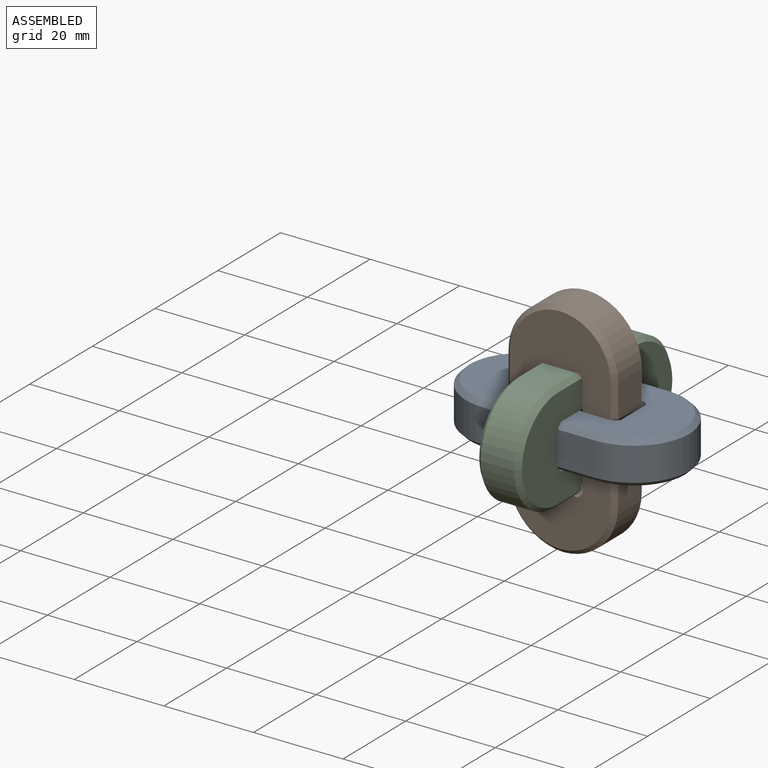
[diagram: assembled view]
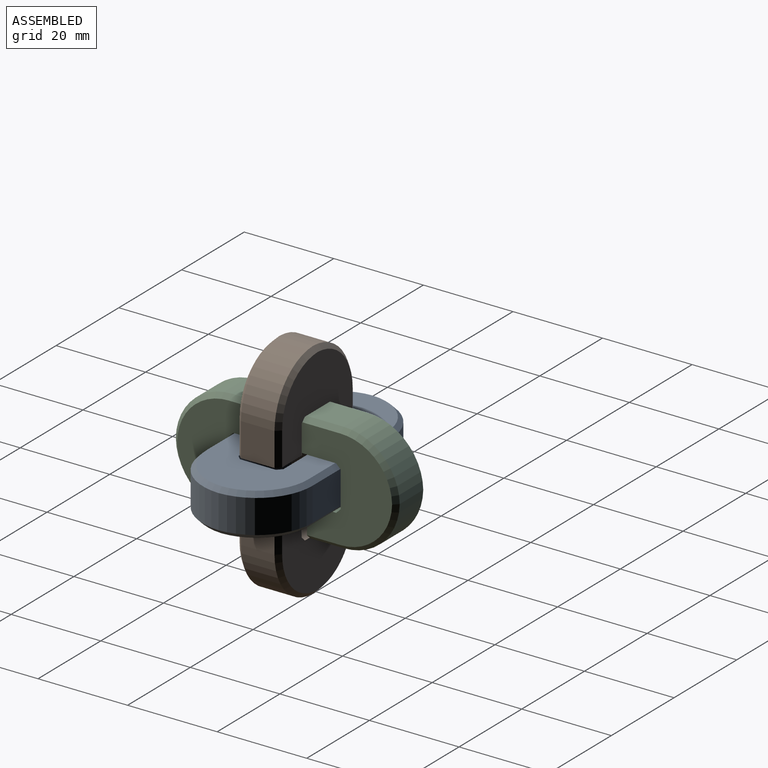
[diagram: assembled view, second angle]
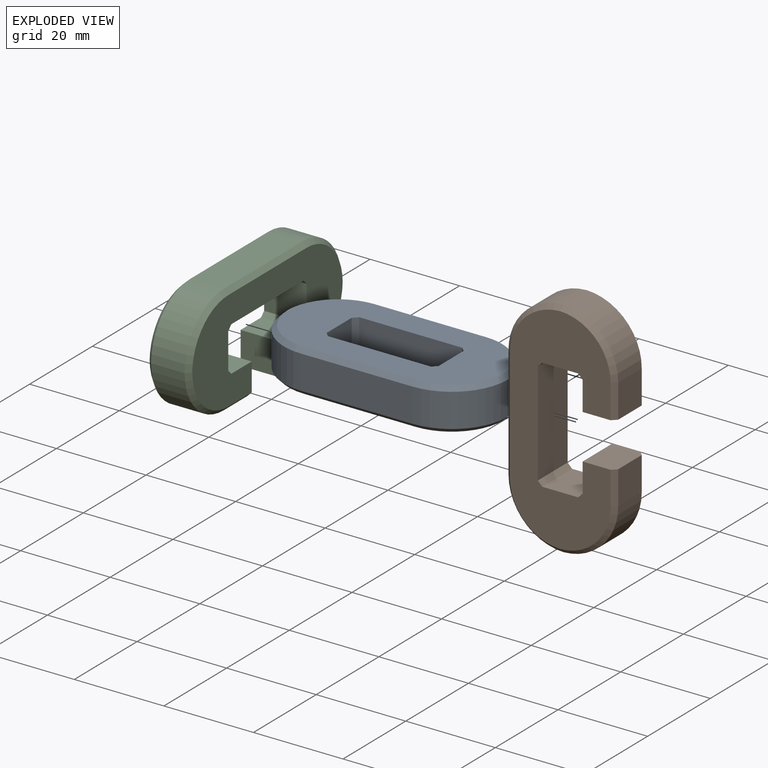
[diagram: exploded view]
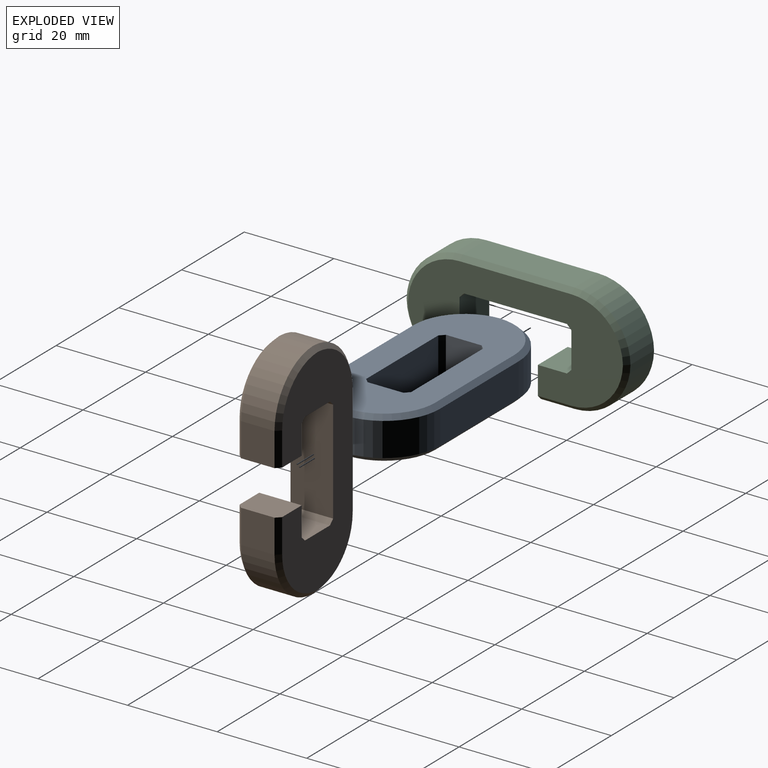
[diagram: exploded view, second angle]
ASSEMBLY  parts=3 mates=3
PART A: 28 faces, bbox 50x24.5x9.5 mm
  f0: plane 23x9.5mm, normal (0,-1,0), area 218.5mm2, adj f6,f7,f24,f25
  f1: plane 9.5x8mm, normal (-1,0,0), area 76mm2, adj f6,f7,f25,f26
  f2: plane 23x9.5mm, normal (0,1,0), area 218.5mm2, adj f6,f7,f26,f27
  f3: plane 25x7.5mm, normal (0,1,0), area 187.5mm2, adj f9,f11,f13,f20
  f4: plane 25x7.5mm, normal (0,-1,0), area 187.5mm2, adj f8,f10,f16,f21
  f5: plane 9.5x8mm, normal (1,0,0), area 76mm2, adj f6,f7,f24,f27
  f6: plane 47.99x22.5mm, normal (0,0,1), area 718.5mm2, adj f0,f1,f2,f5,f18,f19,f20,f21
  f7: plane 47.99x22.5mm, normal (0,0,-1), area 718.5mm2, adj f0,f1,f2,f5,f12,f13,f14,f15
  f8: cylinder r=12.5mm len=12.5mm, axis (0,0,-1), area 145.4mm2, adj f4,f9,f17,f23
  f9: cylinder r=12.5mm len=12.5mm, axis (0,0,1), area 145.4mm2, adj f3,f8,f15,f22
  f10: cylinder r=12.5mm len=12.5mm, axis (0,0,1), area 145.4mm2, adj f4,f11,f14,f19
  f11: cylinder r=12.5mm len=12.5mm, axis (0,0,-1), area 145.4mm2, adj f3,f10,f12,f18
  f12: cone r=11.5mm half-angle=45deg, axis (0,0,1), area 26.3mm2, adj f7,f11,f13,f14
  f13: plane 25x1mm, normal (0,0.71,-0.71), area 35.4mm2, adj f3,f7,f12,f15
  f14: cone r=11.5mm half-angle=45deg, axis (0,0,1), area 26.3mm2, adj f7,f10,f12,f16
  f15: cone r=11.5mm half-angle=45deg, axis (0,0,1), area 26.3mm2, adj f7,f9,f13,f17
  f16: plane 25x1mm, normal (0,-0.71,-0.71), area 35.4mm2, adj f4,f7,f14,f17
  f17: cone r=11.5mm half-angle=45deg, axis (0,0,1), area 26.3mm2, adj f7,f8,f15,f16
  f18: cone r=11.5mm half-angle=45deg, axis (0,0,-1), area 26.3mm2, adj f6,f11,f19,f20
  f19: cone r=11.5mm half-angle=45deg, axis (0,0,-1), area 26.3mm2, adj f6,f10,f18,f21
  f20: plane 25x1mm, normal (0,0.71,0.71), area 35.4mm2, adj f3,f6,f18,f22
  f21: plane 25x1mm, normal (0,-0.71,0.71), area 35.4mm2, adj f4,f6,f19,f23
  f22: cone r=11.5mm half-angle=45deg, axis (0,0,-1), area 26.3mm2, adj f6,f9,f20,f23
  f23: cone r=11.5mm half-angle=45deg, axis (0,0,-1), area 26.3mm2, adj f6,f8,f21,f22
  f24: plane 9.5x1mm, normal (0.71,-0.71,0), area 13.4mm2, adj f0,f5,f6,f7
  f25: plane 9.5x1mm, normal (-0.71,-0.71,0), area 13.4mm2, adj f0,f1,f6,f7
  f26: plane 9.5x1mm, normal (-0.71,0.71,0), area 13.4mm2, adj f1,f2,f6,f7
  f27: plane 9.5x1mm, normal (0.71,0.71,0), area 13.4mm2, adj f2,f5,f6,f7
PART B: 34 faces, bbox 50x24.5x9.5 mm
  f0: plane 9.5x8mm, normal (-1,0,0), area 76mm2, adj f10,f11,f31,f32
  f1: plane 9.5x6.5mm, normal (0,1,0), area 61.8mm2, adj f2,f10,f11,f31
  f2: plane 9.5x7.25mm, normal (-1,0,0), area 67.9mm2, adj f1,f3,f10,f11,f18,f28
  f3: plane 7.5x7.5mm, normal (0,-1,0), area 56.2mm2, adj f2,f13,f18,f28
  f4: plane 25x7.5mm, normal (0,1,0), area 187.5mm2, adj f12,f15,f21,f26
  f5: plane 7.5x7.5mm, normal (0,-1,0), area 56.2mm2, adj f6,f14,f16,f23
  f6: plane 9.5x7.25mm, normal (1,0,0), area 67.9mm2, adj f5,f7,f10,f11,f16,f23
  f7: plane 9.5x6.5mm, normal (0,1,0), area 61.8mm2, adj f6,f10,f11,f30
  f8: plane 9.5x8mm, normal (1,0,0), area 76mm2, adj f10,f11,f30,f33
  f9: plane 23x9.5mm, normal (0,-1,0), area 218.5mm2, adj f10,f11,f32,f33
  f10: plane 47.99x22.5mm, normal (0,0,1), area 656mm2, adj f0,f1,f2,f6,f7,f8,f9,f16
  f11: plane 47.99x22.5mm, normal (0,0,-1), area 656mm2, adj f0,f1,f2,f6,f7,f8,f9,f23
  f12: cylinder r=12.5mm len=12.5mm, axis (0,0,1), area 145.4mm2, adj f4,f13,f22,f27
  f13: cylinder r=12.5mm len=12.5mm, axis (0,0,-1), area 145.4mm2, adj f3,f12,f20,f29
  f14: cylinder r=12.5mm len=12.5mm, axis (0,0,1), area 145.4mm2, adj f5,f15,f17,f24
  f15: cylinder r=12.5mm len=12.5mm, axis (0,0,-1), area 145.4mm2, adj f4,f14,f19,f25
  f16: plane 7.5x1mm, normal (0,-0.71,0.71), area 10.6mm2, adj f5,f6,f10,f17
  f17: cone r=11.5mm half-angle=45deg, axis (0,0,-1), area 26.3mm2, adj f10,f14,f16,f19
  f18: plane 7.5x1mm, normal (0,-0.71,0.71), area 10.6mm2, adj f2,f3,f10,f20
  f19: cone r=11.5mm half-angle=45deg, axis (0,0,-1), area 26.3mm2, adj f10,f15,f17,f21
  f20: cone r=11.5mm half-angle=45deg, axis (0,0,-1), area 26.3mm2, adj f10,f13,f18,f22
  f21: plane 25x1mm, normal (0,0.71,0.71), area 35.4mm2, adj f4,f10,f19,f22
  f22: cone r=11.5mm half-angle=45deg, axis (0,0,-1), area 26.3mm2, adj f10,f12,f20,f21
  f23: plane 7.5x1mm, normal (0,-0.71,-0.71), area 10.6mm2, adj f5,f6,f11,f24
  f24: cone r=11.5mm half-angle=45deg, axis (0,0,1), area 26.3mm2, adj f11,f14,f23,f25
  f25: cone r=11.5mm half-angle=45deg, axis (0,0,1), area 26.3mm2, adj f11,f15,f24,f26
  f26: plane 25x1mm, normal (0,0.71,-0.71), area 35.4mm2, adj f4,f11,f25,f27
  f27: cone r=11.5mm half-angle=45deg, axis (0,0,1), area 26.3mm2, adj f11,f12,f26,f29
  f28: plane 7.5x1mm, normal (0,-0.71,-0.71), area 10.6mm2, adj f2,f3,f11,f29
  f29: cone r=11.5mm half-angle=45deg, axis (0,0,1), area 26.3mm2, adj f11,f13,f27,f28
  f30: plane 9.5x1mm, normal (0.71,0.71,0), area 13.4mm2, adj f7,f8,f10,f11
  f31: plane 9.5x1mm, normal (-0.71,0.71,0), area 13.4mm2, adj f0,f1,f10,f11
  f32: plane 9.5x1mm, normal (-0.71,-0.71,0), area 13.4mm2, adj f0,f9,f10,f11
  f33: plane 9.5x1mm, normal (0.71,-0.71,0), area 13.4mm2, adj f8,f9,f10,f11
PART C: same geometry as B
PLACE A t=(3.51,-1.72,-5.62)mm fixed
PLACE B rot(axis=(0.58,-0.58,0.58),120deg) t=(3.26,-2.09,-5.9)mm
PLACE C rot(axis=(0.58,-0.58,-0.58),120deg) t=(3.01,-1.5,-5.65)mm
MATE planar B.f9 <-> C.f10  axis (1,0,0) through (-1.74,-2.09,-5.9)mm
MATE planar B.f4 <-> A.f5  axis (-1,0,0) through (-8.99,-2.09,-5.9)mm
MATE planar C.f4 <-> B.f0  axis (0,0,1) through (3.01,-1.5,6.6)mm
